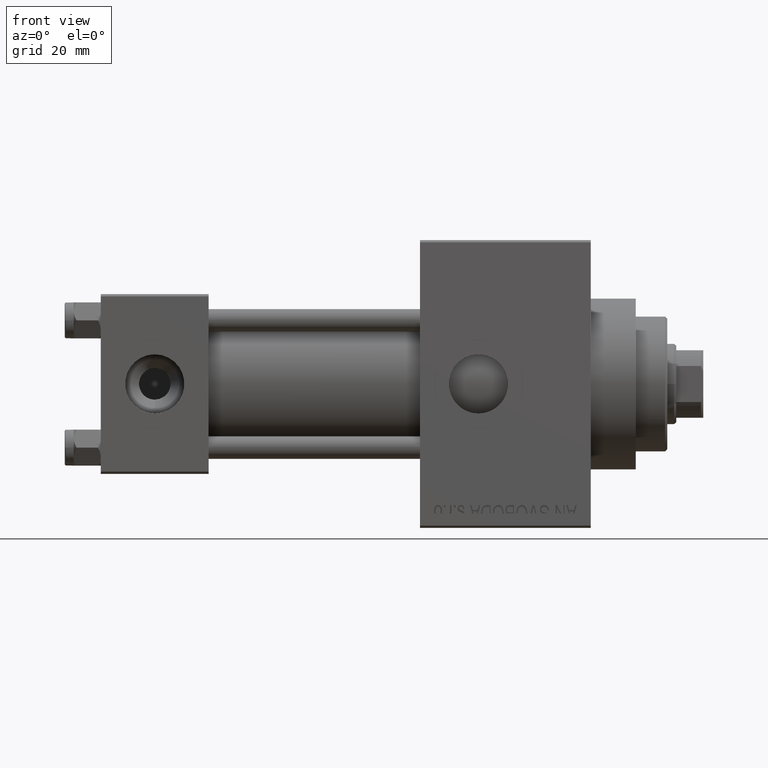
[diagram: clean part render]
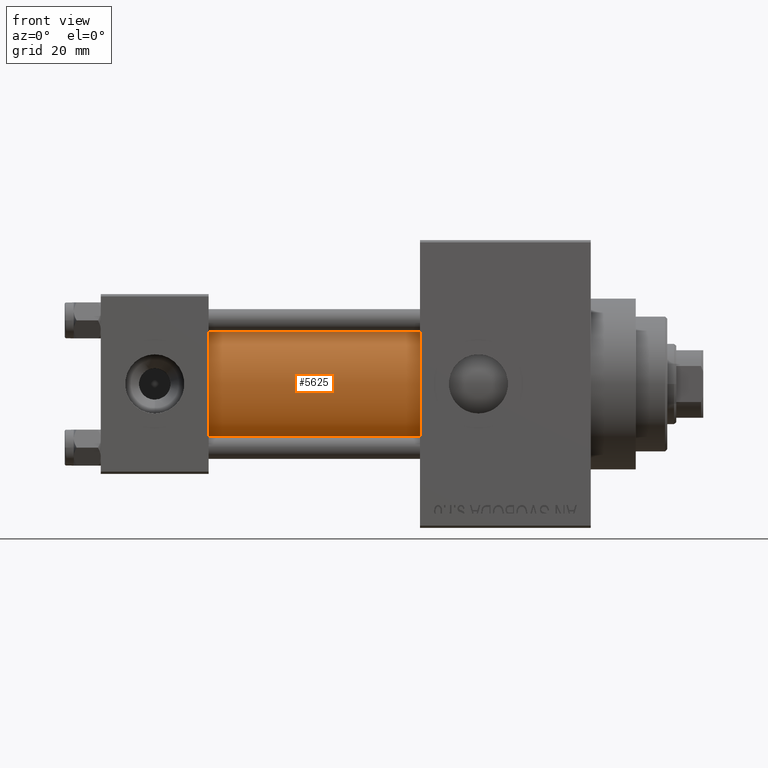
[diagram: same view with one face highlighted and labeled with its STEP entity id]
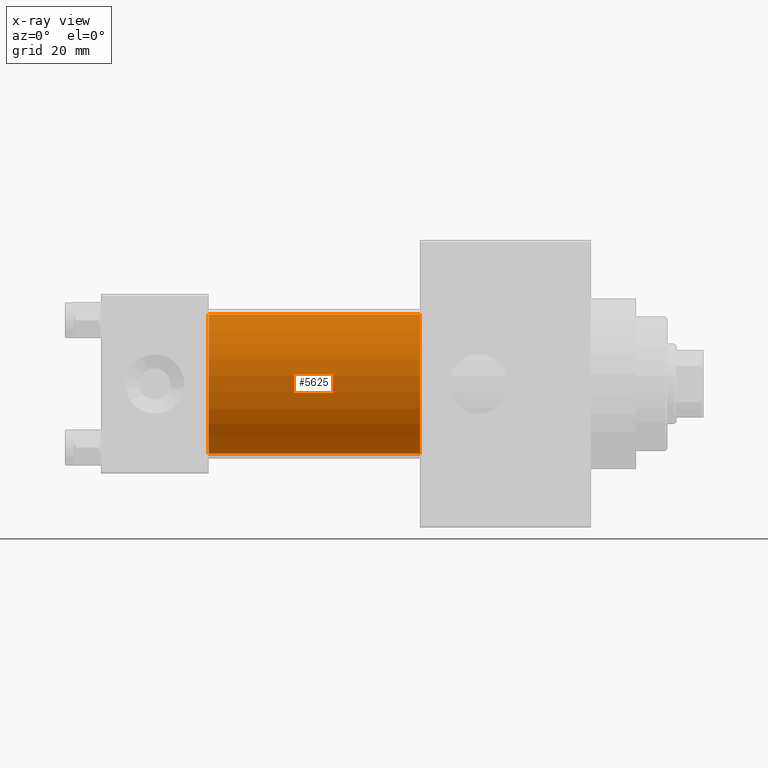
[diagram: x-ray of the same camera — body ghosted, the highlighted face saturated]
A machine part, front view. The second image highlights one B-rep face of the part: STEP entity #5625.
The next image is the same camera in x-ray: the body ghosted, the highlighted face saturated — about 0% of this face is hidden behind the body in this view.
In plain terms, the highlighted cylindrical surface (partial cylindrical patch) has radius 15.5 mm, axis along (-1, -0, -0).
Its self-contained STEP definition (entity closure, byte-faithful):
#30 = DIRECTION ( 'NONE',  ( -1.000000000000000000, -0.000000000000000000, -0.000000000000000000 ) ) ;
#263 = CARTESIAN_POINT ( 'NONE',  ( 71.00000000000001421, -2.602085213965210642E-15, 15.50000000000000000 ) ) ;
#1732 = EDGE_CURVE ( 'NONE', #11995, #26544, #19356, .T. ) ;
#4845 = FACE_OUTER_BOUND ( 'NONE', #34516, .T. ) ;
#5625 = ADVANCED_FACE ( 'NONE', ( #4845 ), #19961, .T. ) ;
#6203 = DIRECTION ( 'NONE',  ( 1.000000000000000000, 0.000000000000000000, 0.000000000000000000 ) ) ;
#11995 = VERTEX_POINT ( 'NONE', #38273 ) ;
#13878 = CARTESIAN_POINT ( 'NONE',  ( 71.00000000000001421, -2.602085213965210642E-15, 0.000000000000000000 ) ) ;
#13914 = AXIS2_PLACEMENT_3D ( 'NONE', #13878, #6203, #43363 ) ;
#13990 = AXIS2_PLACEMENT_3D ( 'NONE', #27287, #16154, #35203 ) ;
#16154 = DIRECTION ( 'NONE',  ( 1.000000000000000000, 0.000000000000000000, 0.000000000000000000 ) ) ;
#16440 = VECTOR ( 'NONE', #30, 1000.000000000000000 ) ;
#17446 = DIRECTION ( 'NONE',  ( -1.000000000000000000, -0.000000000000000000, -0.000000000000000000 ) ) ;
#17976 = VERTEX_POINT ( 'NONE', #29673 ) ;
#18980 = VERTEX_POINT ( 'NONE', #35490 ) ;
#19356 = LINE ( 'NONE', #263, #16440 ) ;
#19961 = CYLINDRICAL_SURFACE ( 'NONE', #23665, 15.50000000000000000 ) ;
#21917 = ORIENTED_EDGE ( 'NONE', *, *, #30042, .F. ) ;
#23665 = AXIS2_PLACEMENT_3D ( 'NONE', #42003, #39010, #31087 ) ;
#25326 = ORIENTED_EDGE ( 'NONE', *, *, #45911, .T. ) ;
#26544 = VERTEX_POINT ( 'NONE', #28794 ) ;
#27287 = CARTESIAN_POINT ( 'NONE',  ( 24.00000000000000000, -2.602085213965210642E-15, 0.000000000000000000 ) ) ;
#27420 = CIRCLE ( 'NONE', #13990, 15.50000000000000000 ) ;
#28212 = EDGE_CURVE ( 'NONE', #11995, #18980, #37662, .T. ) ;
#28794 = CARTESIAN_POINT ( 'NONE',  ( 24.00000000000000000, -2.602085213965210642E-15, 15.50000000000000000 ) ) ;
#29673 = CARTESIAN_POINT ( 'NONE',  ( 24.00000000000000000, -7.038826752868131828E-16, -15.50000000000000000 ) ) ;
#30042 = EDGE_CURVE ( 'NONE', #18980, #17976, #35993, .T. ) ;
#31087 = DIRECTION ( 'NONE',  ( 0.000000000000000000, 0.000000000000000000, 1.000000000000000000 ) ) ;
#31196 = ORIENTED_EDGE ( 'NONE', *, *, #28212, .F. ) ;
#32253 = ORIENTED_EDGE ( 'NONE', *, *, #1732, .T. ) ;
#34516 = EDGE_LOOP ( 'NONE', ( #21917, #31196, #32253, #25326 ) ) ;
#35203 = DIRECTION ( 'NONE',  ( 0.000000000000000000, 0.000000000000000000, 1.000000000000000000 ) ) ;
#35490 = CARTESIAN_POINT ( 'NONE',  ( 71.00000000000001421, -7.038826752868131828E-16, -15.50000000000000000 ) ) ;
#35993 = LINE ( 'NONE', #39952, #43151 ) ;
#37662 = CIRCLE ( 'NONE', #13914, 15.50000000000000000 ) ;
#38273 = CARTESIAN_POINT ( 'NONE',  ( 71.00000000000001421, -2.602085213965210642E-15, 15.50000000000000000 ) ) ;
#39010 = DIRECTION ( 'NONE',  ( -1.000000000000000000, -0.000000000000000000, -0.000000000000000000 ) ) ;
#39952 = CARTESIAN_POINT ( 'NONE',  ( 71.00000000000001421, -7.038826752868131828E-16, -15.50000000000000000 ) ) ;
#42003 = CARTESIAN_POINT ( 'NONE',  ( 71.00000000000001421, -2.602085213965210642E-15, 0.000000000000000000 ) ) ;
#43151 = VECTOR ( 'NONE', #17446, 1000.000000000000000 ) ;
#43363 = DIRECTION ( 'NONE',  ( 0.000000000000000000, 0.000000000000000000, -1.000000000000000000 ) ) ;
#45911 = EDGE_CURVE ( 'NONE', #26544, #17976, #27420, .T. ) ;